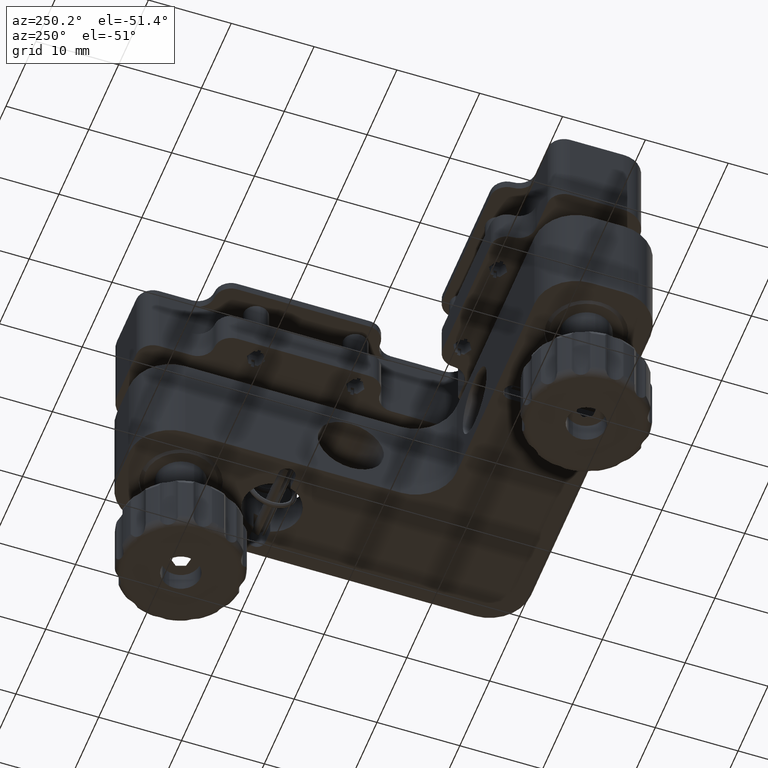
[diagram: clean part render]
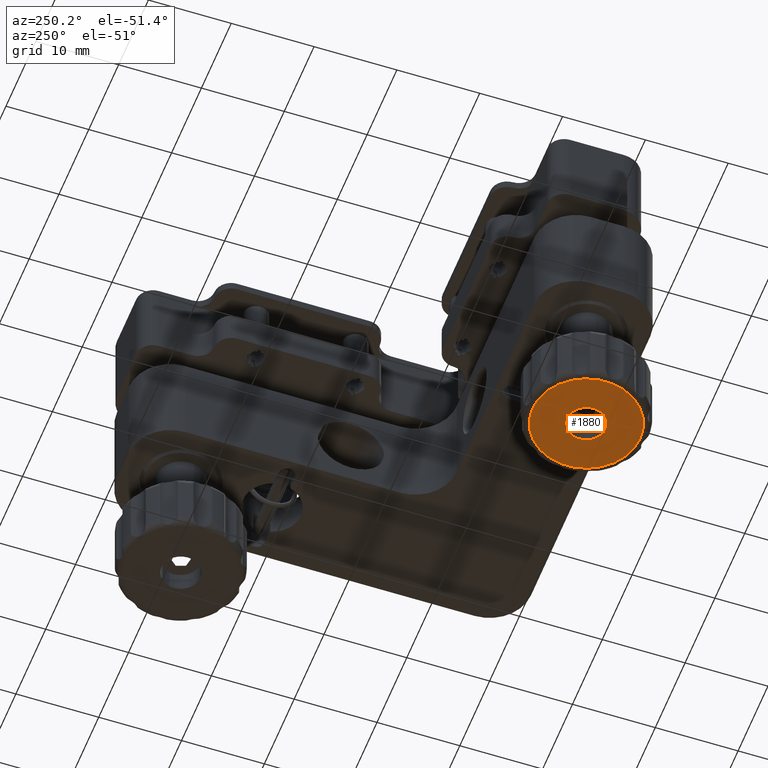
[diagram: same view with one face highlighted and labeled with its STEP entity id]
A machine part, auxiliary view. The second image highlights one B-rep face of the part: STEP entity #1880.
In plain terms, the highlighted planar face has unit normal (-0, 0, -1).
Its self-contained STEP definition (entity closure, byte-faithful):
#399 = DIRECTION ( 'NONE',  ( -2.193185720357693324E-18, 6.611512007216132848E-17, -1.000000000000000000 ) ) ;
#411 = EDGE_LOOP ( 'NONE', ( #17126, #4904 ) ) ;
#501 = CIRCLE ( 'NONE', #7228, 6.500000000000022204 ) ;
#706 = EDGE_CURVE ( 'NONE', #4426, #12663, #501, .T. ) ;
#1031 = CARTESIAN_POINT ( 'NONE',  ( -24.08639145016777050, -20.28163080171280086, -31.50041507641945771 ) ) ;
#1333 = DIRECTION ( 'NONE',  ( -0.9363679154104278535, -0.3510201233404288690, 0.000000000000000000 ) ) ;
#1549 = DIRECTION ( 'NONE',  ( -0.9363679154104278535, -0.3510201233404288690, 0.000000000000000000 ) ) ;
#1734 = DIRECTION ( 'NONE',  ( -0.9363679154104279645, -0.3510201233404285359, 0.000000000000000000 ) ) ;
#1880 = ADVANCED_FACE ( 'NONE', ( #13079, #11848 ), #17311, .T. ) ;
#2326 = AXIS2_PLACEMENT_3D ( 'NONE', #13664, #399, #1549 ) ;
#3249 = AXIS2_PLACEMENT_3D ( 'NONE', #10437, #12102, #10695 ) ;
#4426 = VERTEX_POINT ( 'NONE', #7887 ) ;
#4904 = ORIENTED_EDGE ( 'NONE', *, *, #706, .T. ) ;
#6183 = DIRECTION ( 'NONE',  ( -0.9363679154104279645, -0.3510201233404285359, 0.000000000000000000 ) ) ;
#6401 = AXIS2_PLACEMENT_3D ( 'NONE', #9533, #8470, #1734 ) ;
#7228 = AXIS2_PLACEMENT_3D ( 'NONE', #11542, #9068, #6183 ) ;
#7887 = CARTESIAN_POINT ( 'NONE',  ( -11.91360854983216910, -15.71836919828721157, -31.50041507641945771 ) ) ;
#8164 = EDGE_CURVE ( 'NONE', #10860, #11563, #17199, .T. ) ;
#8470 = DIRECTION ( 'NONE',  ( -2.193185720357693324E-18, 6.611512007216132848E-17, -1.000000000000000000 ) ) ;
#8792 = ORIENTED_EDGE ( 'NONE', *, *, #8931, .F. ) ;
#8794 = CARTESIAN_POINT ( 'NONE',  ( -20.20046460121448462, -18.82489728985001065, -31.50041507641946481 ) ) ;
#8858 = CIRCLE ( 'NONE', #12832, 2.350000000000006306 ) ;
#8931 = EDGE_CURVE ( 'NONE', #11563, #10860, #8858, .T. ) ;
#9068 = DIRECTION ( 'NONE',  ( -2.193185720357693324E-18, 6.611512007216132848E-17, -1.000000000000000000 ) ) ;
#9533 = CARTESIAN_POINT ( 'NONE',  ( -17.99999999999997513, -18.00000000000000355, -31.50041507641946481 ) ) ;
#9767 = ORIENTED_EDGE ( 'NONE', *, *, #8164, .F. ) ;
#10437 = CARTESIAN_POINT ( 'NONE',  ( -17.99999999999997513, -18.00000000000000355, -31.50041507641946481 ) ) ;
#10695 = DIRECTION ( 'NONE',  ( -0.9363679154104279645, -0.3510201233404284249, 2.212231499600866749E-17 ) ) ;
#10860 = VERTEX_POINT ( 'NONE', #8794 ) ;
#11542 = CARTESIAN_POINT ( 'NONE',  ( -17.99999999999997513, -18.00000000000000355, -31.50041507641946481 ) ) ;
#11563 = VERTEX_POINT ( 'NONE', #17384 ) ;
#11848 = FACE_OUTER_BOUND ( 'NONE', #411, .T. ) ;
#12102 = DIRECTION ( 'NONE',  ( -4.271584051406083075E-17, 5.092422443202983095E-17, -1.000000000000000000 ) ) ;
#12663 = VERTEX_POINT ( 'NONE', #1031 ) ;
#12832 = AXIS2_PLACEMENT_3D ( 'NONE', #14689, #14605, #1333 ) ;
#13079 = FACE_BOUND ( 'NONE', #13589, .T. ) ;
#13589 = EDGE_LOOP ( 'NONE', ( #9767, #8792 ) ) ;
#13664 = CARTESIAN_POINT ( 'NONE',  ( -17.99999999999997513, -18.00000000000000355, -31.50041507641946481 ) ) ;
#14605 = DIRECTION ( 'NONE',  ( -2.193185720357693324E-18, 6.611512007216132848E-17, -1.000000000000000000 ) ) ;
#14689 = CARTESIAN_POINT ( 'NONE',  ( -17.99999999999997513, -18.00000000000000355, -31.50041507641946481 ) ) ;
#15055 = EDGE_CURVE ( 'NONE', #12663, #4426, #16246, .T. ) ;
#16246 = CIRCLE ( 'NONE', #6401, 6.500000000000022204 ) ;
#17126 = ORIENTED_EDGE ( 'NONE', *, *, #15055, .T. ) ;
#17199 = CIRCLE ( 'NONE', #2326, 2.350000000000006306 ) ;
#17311 = PLANE ( 'NONE',  #3249 ) ;
#17384 = CARTESIAN_POINT ( 'NONE',  ( -15.79953539878546565, -17.17510271015000001, -31.50041507641946481 ) ) ;